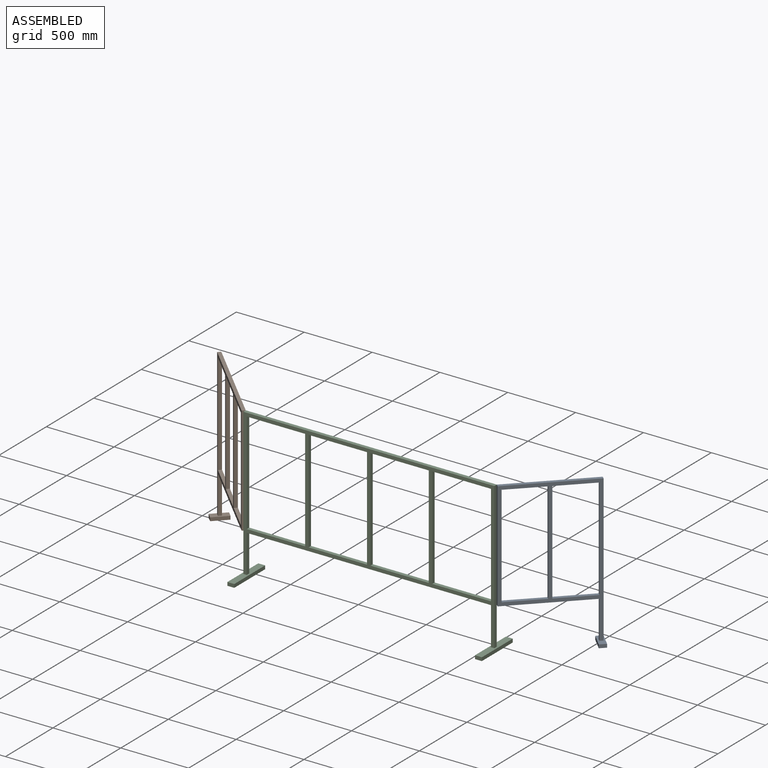
[diagram: assembled view]
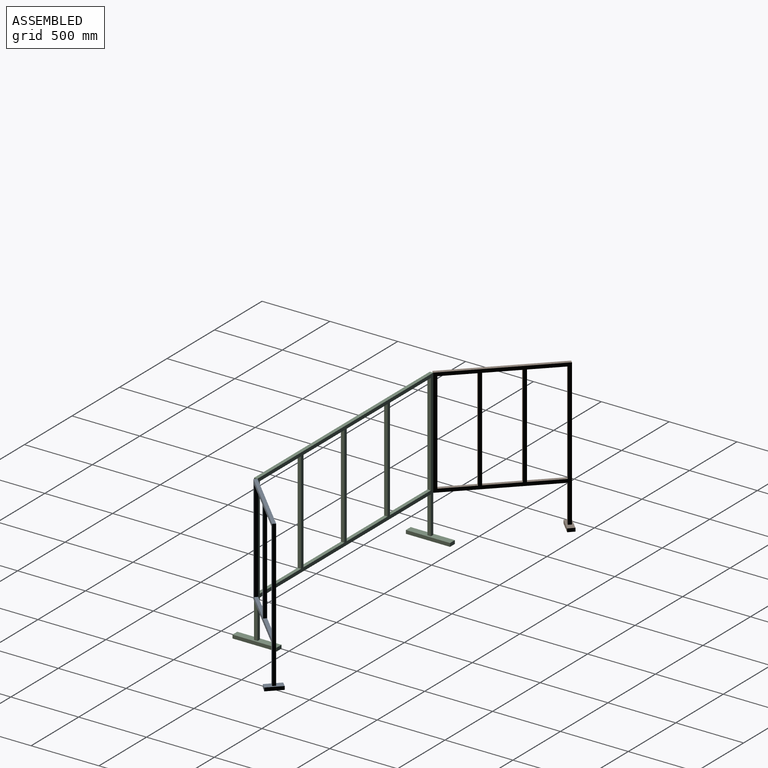
[diagram: assembled view, second angle]
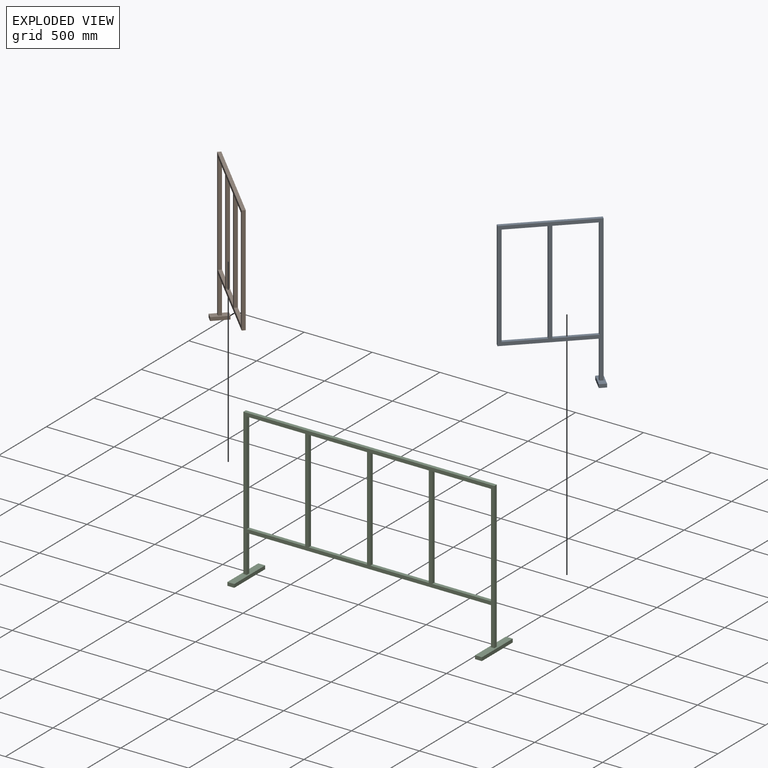
[diagram: exploded view]
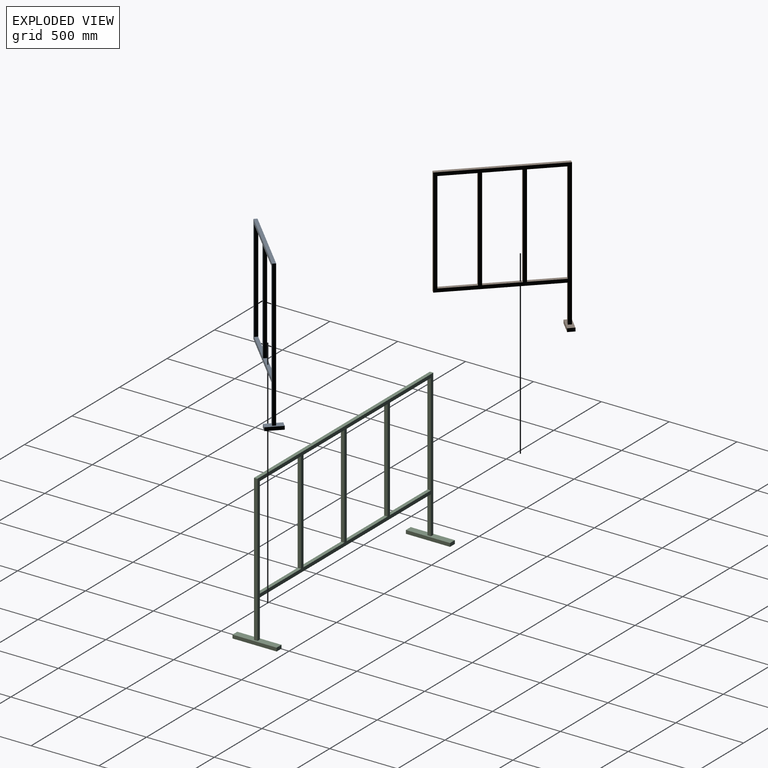
[diagram: exploded view, second angle]
ASSEMBLY  parts=3 mates=2
PART A: 21 faces, bbox 662.7x125x1105.4 mm
  f0: plane 1080x650mm, normal (0,1,0), area 97221mm2, adj f2,f3,f4,f5,f6,f7,f8,f9
  f1: plane 1080x650mm, normal (0,-1,0), area 97221mm2, adj f2,f3,f4,f5,f6,f7,f8,f9
  f2: plane 280x25mm, normal (-1,0,0), area 7000mm2, adj f0,f1,f6,f20
  f3: plane 1080x25mm, normal (1,0,0), area 27000mm2, adj f0,f1,f4,f20
  f4: plane 650x25mm, normal (0,0,1), area 16250mm2, adj f0,f1,f3,f5
  f5: plane 800x25mm, normal (-1,0,0), area 20000mm2, adj f0,f1,f4,f6
  f6: plane 624.6x25mm, normal (0,0,-1), area 15615mm2, adj f0,f1,f2,f5
  f7: plane 288.8x25mm, normal (0,0,-1), area 7220mm2, adj f0,f1,f8,f10
  f8: plane 749.2x25mm, normal (1,0,0), area 18730mm2, adj f0,f1,f7,f9
  f9: plane 288.8x25mm, normal (0,0,1), area 7220mm2, adj f0,f1,f8,f10
  f10: plane 749.2x25mm, normal (-1,0,0), area 18730mm2, adj f0,f1,f7,f9
  f11: plane 285x25mm, normal (0,0,-1), area 7125mm2, adj f0,f1,f12,f14
  f12: plane 749.2x25mm, normal (1,0,0), area 18730mm2, adj f0,f1,f11,f13
  f13: plane 285x25mm, normal (0,0,1), area 7125mm2, adj f0,f1,f12,f14
  f14: plane 749.2x25mm, normal (-1,0,0), area 18730mm2, adj f0,f1,f11,f13
  f15: plane 50.8x25.4mm, normal (0,-1,0), area 1290.3mm2, adj f16,f18,f19,f20
  f16: plane 125x25.4mm, normal (-1,0,0), area 3175mm2, adj f15,f17,f19,f20
  f17: plane 50.8x25.4mm, normal (0,1,0), area 1290.3mm2, adj f16,f18,f19,f20
  f18: plane 125x25.4mm, normal (1,0,0), area 3175mm2, adj f15,f17,f19,f20
  f19: plane 125x50.8mm, normal (0,0,-1), area 6350mm2, adj f15,f16,f17,f18
  f20: plane 125x50.8mm, normal (0,0,1), area 5715mm2, adj f0,f1,f2,f3,f15,f16,f17,f18
PART B: 25 faces, bbox 862.7x125.4x1105.4 mm
  f0: plane 749.2x25.4mm, normal (1,0,0), area 19029.7mm2, adj f1,f16,f17,f18
  f1: plane 248.4x25.4mm, normal (0,0,-1), area 6309.4mm2, adj f0,f2,f17,f18
  f2: plane 749.2x25.4mm, normal (-1,0,0), area 19029.7mm2, adj f1,f16,f17,f18
  f3: plane 749.2x25.4mm, normal (1,0,0), area 19029.7mm2, adj f4,f13,f17,f18
  f4: plane 250x25.4mm, normal (0,0,-1), area 6350mm2, adj f3,f5,f17,f18
  f5: plane 749.2x25.4mm, normal (-1,0,0), area 19029.7mm2, adj f4,f13,f17,f18
  f6: plane 749.2x25.4mm, normal (1,0,0), area 19029.7mm2, adj f7,f14,f17,f18
  f7: plane 250x25.4mm, normal (0,0,-1), area 6350mm2, adj f6,f8,f17,f18
  f8: plane 749.2x25.4mm, normal (-1,0,0), area 19029.7mm2, adj f7,f14,f17,f18
  f9: plane 280x25.4mm, normal (1,0,0), area 7112mm2, adj f10,f17,f18,f19
  f10: plane 824.6x25.4mm, normal (0,0,-1), area 20944.8mm2, adj f9,f11,f17,f18
  f11: plane 800x25.4mm, normal (1,0,0), area 20320mm2, adj f10,f12,f17,f18
  f12: plane 850x25.4mm, normal (0,0,1), area 21590mm2, adj f11,f15,f17,f18
  f13: plane 250x25.4mm, normal (0,0,1), area 6350mm2, adj f3,f5,f17,f18
  f14: plane 250x25.4mm, normal (0,0,1), area 6350mm2, adj f6,f8,f17,f18
  f15: plane 1080x25.4mm, normal (-1,0,0), area 27432mm2, adj f12,f17,f18,f19
  f16: plane 248.4x25.4mm, normal (0,0,1), area 6309.4mm2, adj f0,f2,f17,f18
  f17: plane 1080x850mm, normal (0,1,0), area 126410.7mm2, adj f0,f1,f2,f3,f4,f5,f6,f7
  f18: plane 1080x850mm, normal (0,-1,0), area 126410.7mm2, adj f0,f1,f2,f3,f4,f5,f6,f7
  f19: plane 125.4x50.8mm, normal (0,0,1), area 5725.2mm2, adj f9,f15,f17,f18,f20,f21,f22,f23
  f20: plane 50.8x25.4mm, normal (0,-1,0), area 1290.3mm2, adj f19,f21,f23,f24
  f21: plane 125.4x25.4mm, normal (-1,0,0), area 3185.2mm2, adj f19,f20,f22,f24
  f22: plane 50.8x25.4mm, normal (0,1,0), area 1290.3mm2, adj f19,f21,f23,f24
  f23: plane 125.4x25.4mm, normal (1,0,0), area 3185.2mm2, adj f19,f20,f22,f24
  f24: plane 125.4x50.8mm, normal (0,0,-1), area 6370.3mm2, adj f20,f21,f22,f23
PART C: 36 faces, bbox 1875.4x325.4x1105.4 mm
  f0: plane 1850x1080mm, normal (0,1,0), area 203352.4mm2, adj f2,f3,f4,f5,f6,f7,f8,f9
  f1: plane 1850x1080mm, normal (0,-1,0), area 203352.4mm2, adj f2,f3,f4,f5,f6,f7,f8,f9
  f2: plane 280x25.4mm, normal (-1,0,0), area 7112mm2, adj f0,f1,f7,f29
  f3: plane 1080x25.4mm, normal (1,0,0), area 27432mm2, adj f0,f1,f4,f29
  f4: plane 1850x25.4mm, normal (0,0,1), area 46990mm2, adj f0,f1,f3,f5
  f5: plane 1080x25.4mm, normal (-1,0,0), area 27432mm2, adj f0,f1,f4,f35
  f6: plane 280x25.4mm, normal (1,0,0), area 7112mm2, adj f0,f1,f7,f35
  f7: plane 1799.2x25.4mm, normal (0,0,-1), area 45699.7mm2, adj f0,f1,f2,f6
  f8: plane 430x25.4mm, normal (0,0,-1), area 10922mm2, adj f0,f1,f9,f11
  f9: plane 749.2x25.4mm, normal (1,0,0), area 19029.7mm2, adj f0,f1,f8,f10
  f10: plane 430x25.4mm, normal (0,0,1), area 10922mm2, adj f0,f1,f9,f11
  f11: plane 749.2x25.4mm, normal (-1,0,0), area 19029.7mm2, adj f0,f1,f8,f10
  f12: plane 430x25.4mm, normal (0,0,-1), area 10922mm2, adj f0,f1,f13,f15
  f13: plane 749.2x25.4mm, normal (1,0,0), area 19029.7mm2, adj f0,f1,f12,f14
  f14: plane 430x25.4mm, normal (0,0,1), area 10922mm2, adj f0,f1,f13,f15
  f15: plane 749.2x25.4mm, normal (-1,0,0), area 19029.7mm2, adj f0,f1,f12,f14
  f16: plane 433x25.4mm, normal (0,0,-1), area 10998.2mm2, adj f0,f1,f17,f19
  f17: plane 749.2x25.4mm, normal (1,0,0), area 19029.7mm2, adj f0,f1,f16,f18
  f18: plane 433x25.4mm, normal (0,0,1), area 10998.2mm2, adj f0,f1,f17,f19
  f19: plane 749.2x25.4mm, normal (-1,0,0), area 19029.7mm2, adj f0,f1,f16,f18
  f20: plane 430x25.4mm, normal (0,0,-1), area 10922mm2, adj f0,f1,f21,f23
  f21: plane 749.2x25.4mm, normal (1,0,0), area 19029.7mm2, adj f0,f1,f20,f22
  f22: plane 430x25.4mm, normal (0,0,1), area 10922mm2, adj f0,f1,f21,f23
  f23: plane 749.2x25.4mm, normal (-1,0,0), area 19029.7mm2, adj f0,f1,f20,f22
  f24: plane 50.8x25.4mm, normal (0,-1,0), area 1290.3mm2, adj f25,f27,f28,f29
  f25: plane 325.4x25.4mm, normal (-1,0,0), area 8265.2mm2, adj f24,f26,f28,f29
  f26: plane 50.8x25.4mm, normal (0,1,0), area 1290.3mm2, adj f25,f27,f28,f29
  f27: plane 325.4x25.4mm, normal (1,0,0), area 8265.2mm2, adj f24,f26,f28,f29
  f28: plane 325.4x50.8mm, normal (0,0,-1), area 16530.3mm2, adj f24,f25,f26,f27
  f29: plane 325.4x50.8mm, normal (0,0,1), area 15885.2mm2, adj f0,f1,f2,f3,f24,f25,f26,f27
  f30: plane 325.4x25.4mm, normal (-1,0,0), area 8265.2mm2, adj f31,f33,f34,f35
  f31: plane 50.8x25.4mm, normal (0,1,0), area 1290.3mm2, adj f30,f32,f34,f35
  f32: plane 325.4x25.4mm, normal (1,0,0), area 8265.2mm2, adj f31,f33,f34,f35
  f33: plane 50.8x25.4mm, normal (0,-1,0), area 1290.3mm2, adj f30,f32,f34,f35
  f34: plane 325.4x50.8mm, normal (0,0,-1), area 16530.3mm2, adj f30,f31,f32,f33
  f35: plane 325.4x50.8mm, normal (0,0,1), area 15885.2mm2, adj f0,f1,f5,f6,f30,f31,f32,f33
PLACE A rot(axis=(0,0,1),45deg) t=(-252.75,-557.08,-65.43)mm
PLACE B rot(axis=(0,0,-1),45deg) t=(-688.82,-220.29,-90.83)mm
PLACE C t=(-540.45,328.52,-90.83)mm
MATE revolute B.f12 <-> C.f4  axis (0,0,1) through (-1227.11,353.92,585.84)mm
MATE revolute A.f4 <-> C.f4  axis (0,0,1) through (622.89,353.92,585.84)mm
